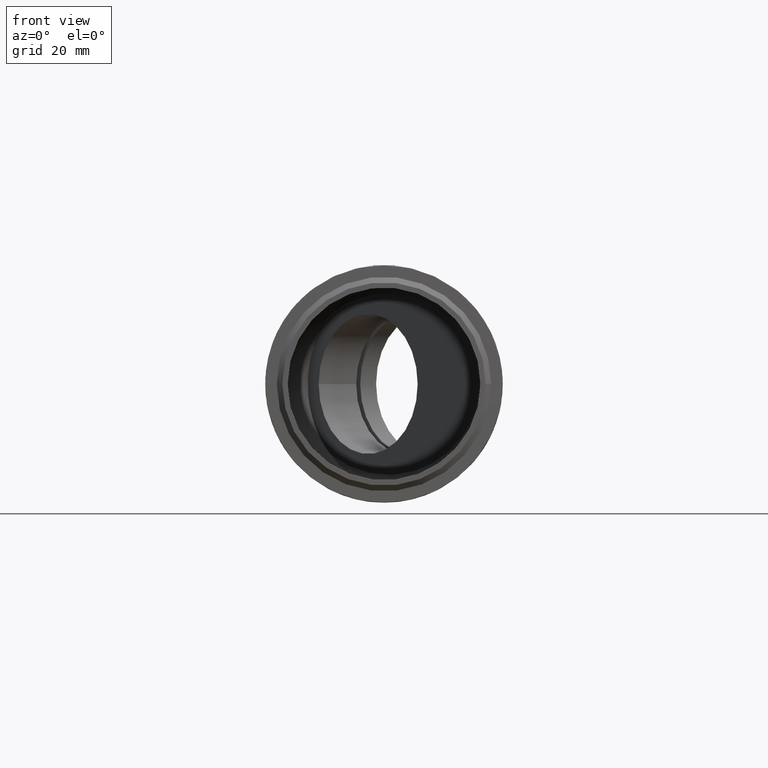
[diagram: clean part render]
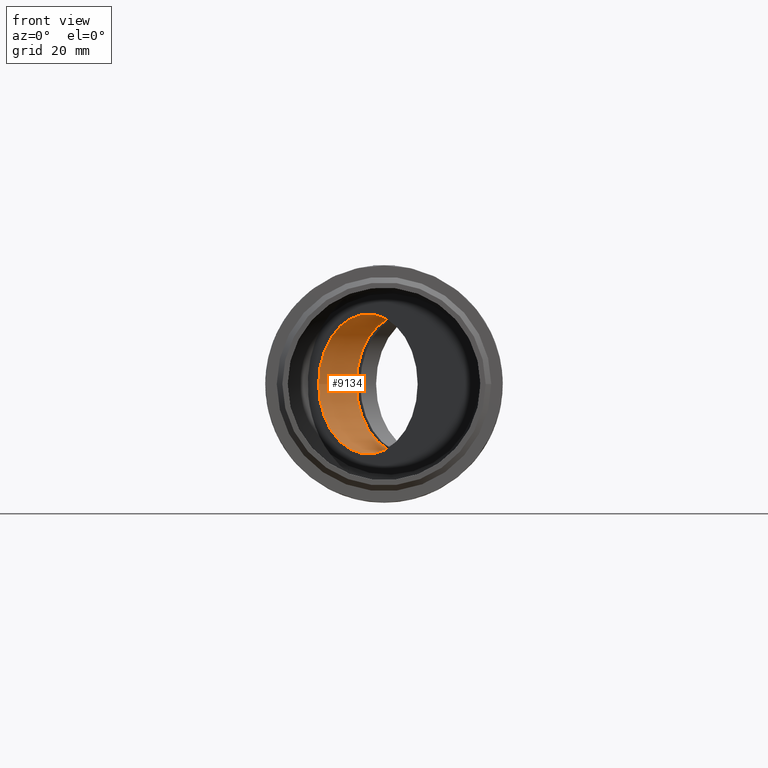
[diagram: same view with one face highlighted and labeled with its STEP entity id]
A machine part, front view. The second image highlights one B-rep face of the part: STEP entity #9134.
In plain terms, the highlighted cylindrical surface (bore or boss wall) has radius 12.5 mm, axis along (0.7071, 0.7071, 0).
Its self-contained STEP definition (entity closure, byte-faithful):
#1074 = CIRCLE ( 'NONE', #6150, 12.50000000000000200 ) ;
#1561 = CARTESIAN_POINT ( 'NONE',  ( -39.60100000000006300, -1.600999999999866300, 0.0000000000000000000 ) ) ;
#2746 = FACE_OUTER_BOUND ( 'NONE', #14397, .T. ) ;
#4566 = CARTESIAN_POINT ( 'NONE',  ( -2.828427124746193800, 35.17157287525388700, 0.0000000000000000000 ) ) ;
#5961 = DIRECTION ( 'NONE',  ( -0.7071067811865465700, 0.7071067811865485700, 0.0000000000000000000 ) ) ;
#6019 = EDGE_LOOP ( 'NONE', ( #13321 ) ) ;
#6106 = DIRECTION ( 'NONE',  ( 0.7071067811865461300, -0.7071067811865489100, 0.0000000000000000000 ) ) ;
#6150 = AXIS2_PLACEMENT_3D ( 'NONE', #4566, #10431, #6106 ) ;
#6505 = EDGE_CURVE ( 'NONE', #8715, #8715, #1074, .T. ) ;
#6582 = AXIS2_PLACEMENT_3D ( 'NONE', #17725, #11768, #11693 ) ;
#8288 = ORIENTED_EDGE ( 'NONE', *, *, #14740, .T. ) ;
#8715 = VERTEX_POINT ( 'NONE', #10627 ) ;
#9134 = ADVANCED_FACE ( 'NONE', ( #2746, #13908 ), #16120, .F. ) ;
#10162 = DIRECTION ( 'NONE',  ( 0.7071067811865485700, 0.7071067811865464600, -0.0000000000000000000 ) ) ;
#10431 = DIRECTION ( 'NONE',  ( 0.7071067811865489100, 0.7071067811865462400, 0.0000000000000000000 ) ) ;
#10627 = CARTESIAN_POINT ( 'NONE',  ( 6.010407640085634100, 26.33273811042202800, 0.0000000000000000000 ) ) ;
#11693 = DIRECTION ( 'NONE',  ( -0.7071067811865473500, 0.7071067811865475700, 0.0000000000000000000 ) ) ;
#11768 = DIRECTION ( 'NONE',  ( 0.7071067811865475700, 0.7071067811865475700, 0.0000000000000000000 ) ) ;
#13321 = ORIENTED_EDGE ( 'NONE', *, *, #6505, .F. ) ;
#13481 = CARTESIAN_POINT ( 'NONE',  ( -4.949747468305813100, 50.72792206135794400, 0.0000000000000000000 ) ) ;
#13908 = FACE_OUTER_BOUND ( 'NONE', #6019, .T. ) ;
#14192 = AXIS2_PLACEMENT_3D ( 'NONE', #1561, #10162, #5961 ) ;
#14397 = EDGE_LOOP ( 'NONE', ( #8288 ) ) ;
#14740 = EDGE_CURVE ( 'NONE', #18746, #18746, #15766, .T. ) ;
#15766 = CIRCLE ( 'NONE', #6582, 12.50000000000000500 ) ;
#16120 = CYLINDRICAL_SURFACE ( 'NONE', #14192, 12.50000000000000200 ) ;
#17725 = CARTESIAN_POINT ( 'NONE',  ( 3.889087296526032100, 41.88908729652609300, 0.0000000000000000000 ) ) ;
#18746 = VERTEX_POINT ( 'NONE', #13481 ) ;